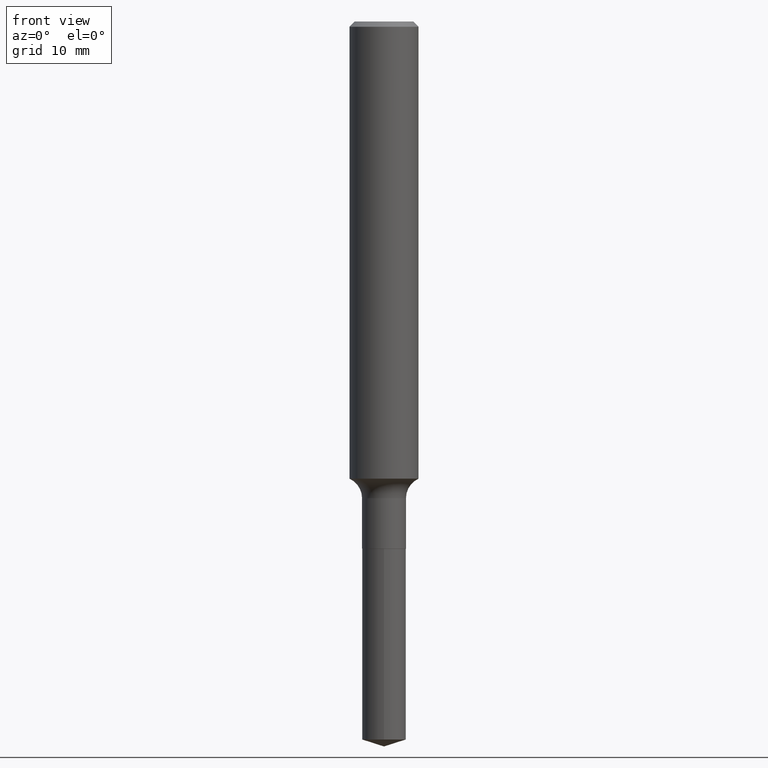
[diagram: clean part render]
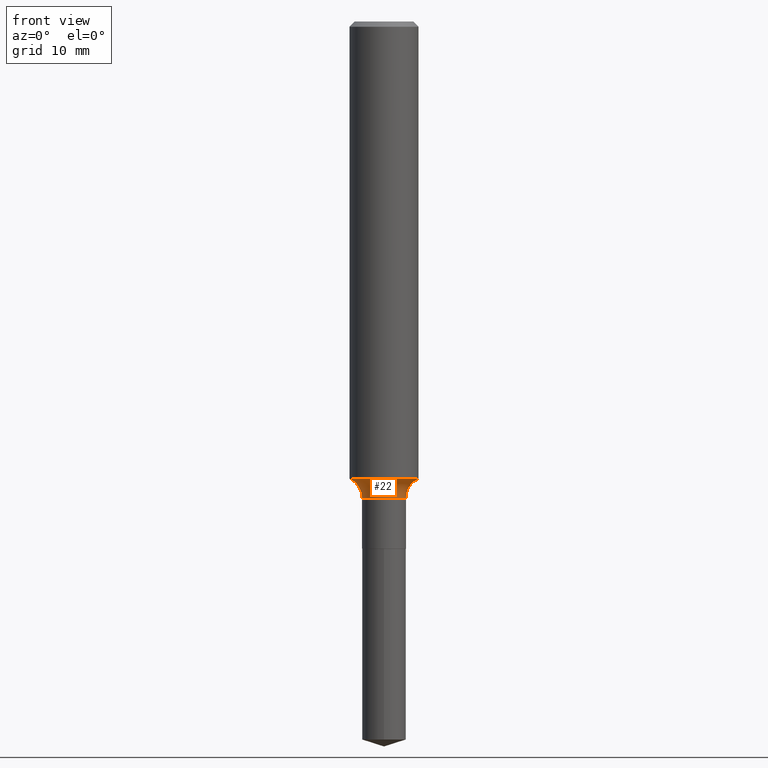
[diagram: same view with one face highlighted and labeled with its STEP entity id]
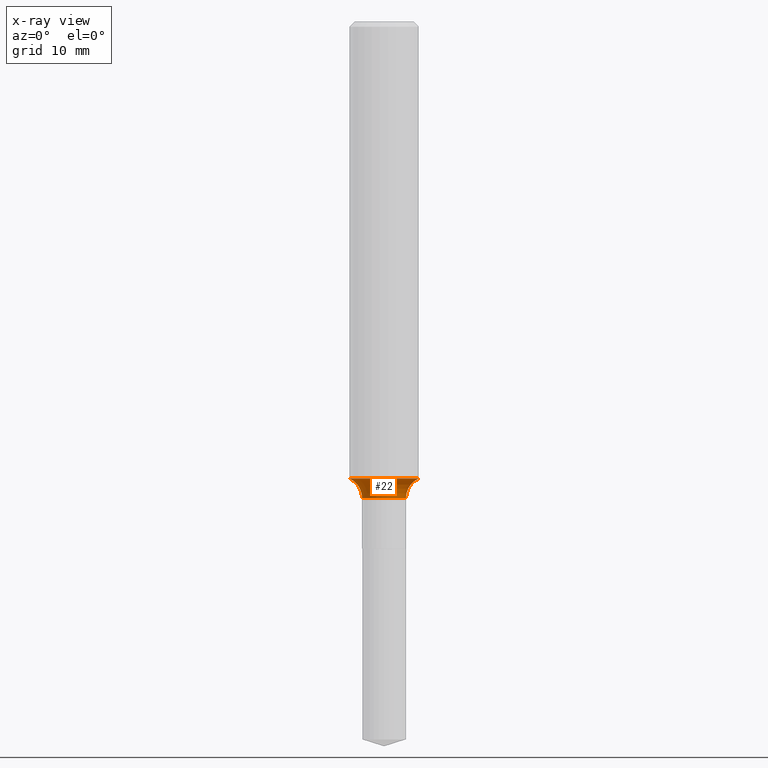
[diagram: x-ray of the same camera — body ghosted, the highlighted face saturated]
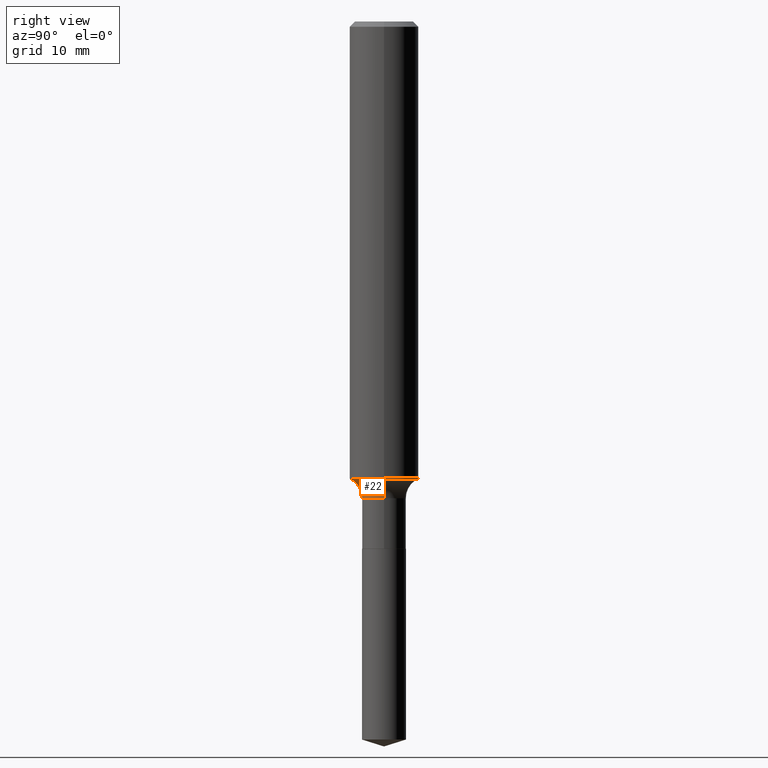
[diagram: same view with one face highlighted and labeled with its STEP entity id]
A machine part, front view. The second image highlights one B-rep face of the part: STEP entity #22.
The next image is the same camera in x-ray: the body ghosted, the highlighted face saturated — about 0% of this face is hidden behind the body in this view.
A second angle (right view) of the same face is appended — the face is thin or edge-on in the first view.
In plain terms, the highlighted toroidal blend (fillet) surface has major radius 4.0005 mm and minor (blend) radius 1.9812 mm.
Its self-contained STEP definition (entity closure, byte-faithful):
#2 = AXIS2_PLACEMENT_3D ( 'NONE', #81, #200, #87 ) ;
#5 = DIRECTION ( 'NONE',  ( -2.445468806185136597E-29, 3.491481338843145583E-15, 1.000000000000000000 ) ) ;
#22 = ADVANCED_FACE ( 'NONE', ( #371 ), #486, .F. ) ;
#46 = CARTESIAN_POINT ( 'NONE',  ( 4.047723757608193363E-29, -5.779076767913244997E-15, -1.655193371254867873 ) ) ;
#73 = AXIS2_PLACEMENT_3D ( 'NONE', #342, #383, #165 ) ;
#78 = EDGE_CURVE ( 'NONE', #250, #332, #450, .T. ) ;
#81 = CARTESIAN_POINT ( 'NONE',  ( 0.1574999999999999456, -7.126462560712738759E-15, -1.726099999999999968 ) ) ;
#87 = DIRECTION ( 'NONE',  ( 1.000000000000000000, -6.982962677686264344E-15, 0.000000000000000000 ) ) ;
#93 = EDGE_CURVE ( 'NONE', #247, #167, #468, .T. ) ;
#114 = CARTESIAN_POINT ( 'NONE',  ( 4.221123706356164008E-29, -6.026645938977152856E-15, -1.726099999999999968 ) ) ;
#135 = CARTESIAN_POINT ( 'NONE',  ( -0.1574999999999999456, -4.907541130154996042E-15, -1.726099999999999968 ) ) ;
#138 = EDGE_CURVE ( 'NONE', #332, #167, #304, .T. ) ;
#142 = DIRECTION ( 'NONE',  ( 1.000000000000000000, -6.982962677686268288E-15, 4.883557194083114022E-29 ) ) ;
#165 = DIRECTION ( 'NONE',  ( 1.000000000000000000, -6.982962677686267499E-15, 0.000000000000000000 ) ) ;
#167 = VERTEX_POINT ( 'NONE', #198 ) ;
#179 = AXIS2_PLACEMENT_3D ( 'NONE', #114, #183, #142 ) ;
#183 = DIRECTION ( 'NONE',  ( -2.445468806185136597E-29, 3.491481338843145583E-15, 1.000000000000000000 ) ) ;
#198 = CARTESIAN_POINT ( 'NONE',  ( 0.07949999999999998734, -6.581791471853211501E-15, -1.726099999999999968 ) ) ;
#200 = DIRECTION ( 'NONE',  ( -6.982962677686266711E-15, -1.000000000000000000, 3.491481338843145583E-15 ) ) ;
#236 = CARTESIAN_POINT ( 'NONE',  ( -0.07949999999999998734, -5.780187562150368763E-15, -1.726099999999999968 ) ) ;
#242 = AXIS2_PLACEMENT_3D ( 'NONE', #46, #5, #378 ) ;
#247 = VERTEX_POINT ( 'NONE', #236 ) ;
#250 = VERTEX_POINT ( 'NONE', #419 ) ;
#262 = ORIENTED_EDGE ( 'NONE', *, *, #93, .T. ) ;
#271 = CIRCLE ( 'NONE', #469, 0.07799999999999993050 ) ;
#288 = DIRECTION ( 'NONE',  ( -1.000000000000000000, 7.105427357601005014E-15, 0.000000000000000000 ) ) ;
#304 = CIRCLE ( 'NONE', #2, 0.07799999999999993050 ) ;
#323 = ORIENTED_EDGE ( 'NONE', *, *, #376, .T. ) ;
#329 = ORIENTED_EDGE ( 'NONE', *, *, #78, .F. ) ;
#332 = VERTEX_POINT ( 'NONE', #440 ) ;
#342 = CARTESIAN_POINT ( 'NONE',  ( 4.221123706356164008E-29, -6.026645938977152856E-15, -1.726099999999999968 ) ) ;
#371 = FACE_OUTER_BOUND ( 'NONE', #373, .T. ) ;
#373 = EDGE_LOOP ( 'NONE', ( #329, #323, #262, #473 ) ) ;
#376 = EDGE_CURVE ( 'NONE', #250, #247, #271, .T. ) ;
#378 = DIRECTION ( 'NONE',  ( 1.000000000000000000, -6.982962677686267499E-15, 0.000000000000000000 ) ) ;
#383 = DIRECTION ( 'NONE',  ( -2.445468806185136597E-29, 3.491481338843145583E-15, 1.000000000000000000 ) ) ;
#397 = DIRECTION ( 'NONE',  ( 7.105427357601001859E-15, 1.000000000000000000, -3.491481338843145583E-15 ) ) ;
#419 = CARTESIAN_POINT ( 'NONE',  ( -0.1250000000000001665, -4.890898348213118976E-15, -1.655193371254867873 ) ) ;
#440 = CARTESIAN_POINT ( 'NONE',  ( 0.1250000000000001665, -6.651947102624029913E-15, -1.655193371254867873 ) ) ;
#450 = CIRCLE ( 'NONE', #242, 0.1250000000000001943 ) ;
#468 = CIRCLE ( 'NONE', #73, 0.07949999999999998734 ) ;
#469 = AXIS2_PLACEMENT_3D ( 'NONE', #135, #397, #288 ) ;
#473 = ORIENTED_EDGE ( 'NONE', *, *, #138, .F. ) ;
#486 = TOROIDAL_SURFACE ( 'NONE', #179, 0.1574999999999999456, 0.07799999999999993050 ) ;